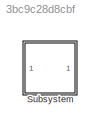
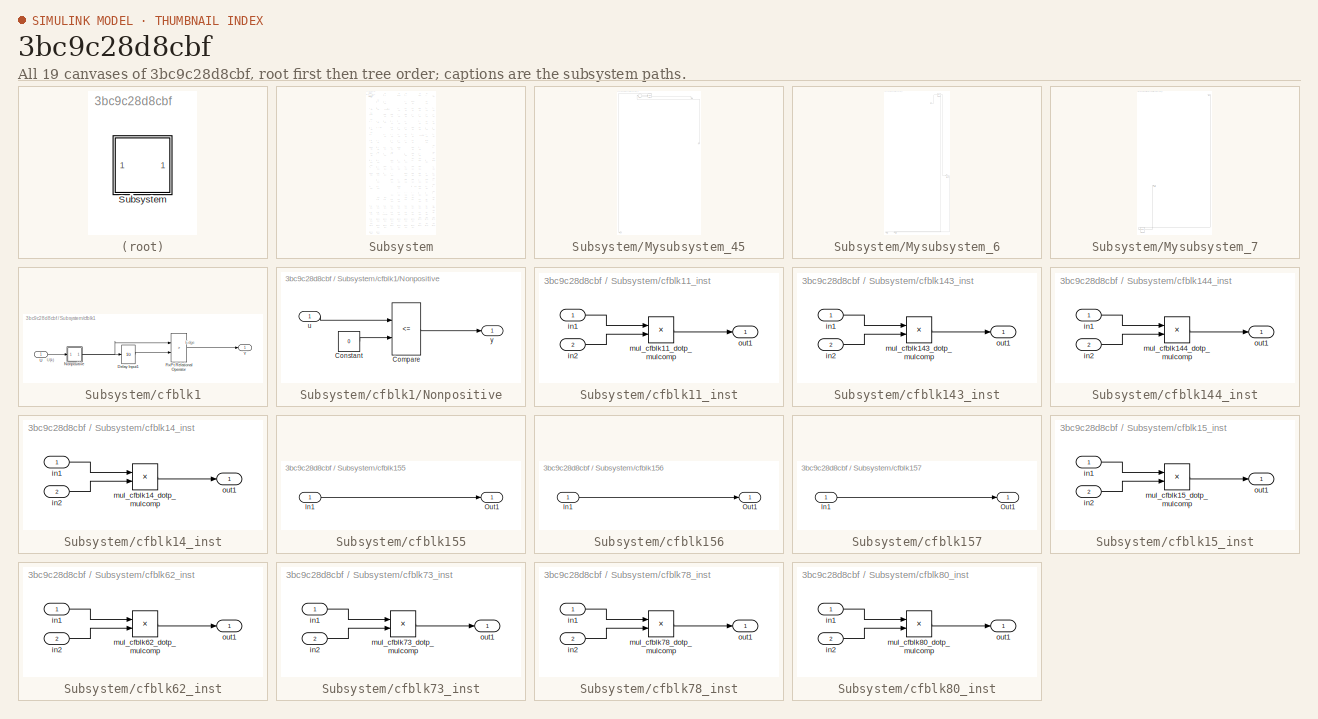
[diagram: thumbnail index - all 19 canvases of the model, root first then tree order]
MODEL slx_3bc9c28d8cbf
KIND model
CONFIG AbsTol = auto
CONFIG EnableMultiTasking = off
CONFIG FixedStep = auto
CONFIG MaxStep = auto
CONFIG MinStep = auto
CONFIG RelTol = 1e-3
CONFIG SampleTimeConstraint = Unconstrained
CONFIG SolverName = VariableStepAuto
CONFIG StartTime = 0.0
CONFIG StopTime = 10.0
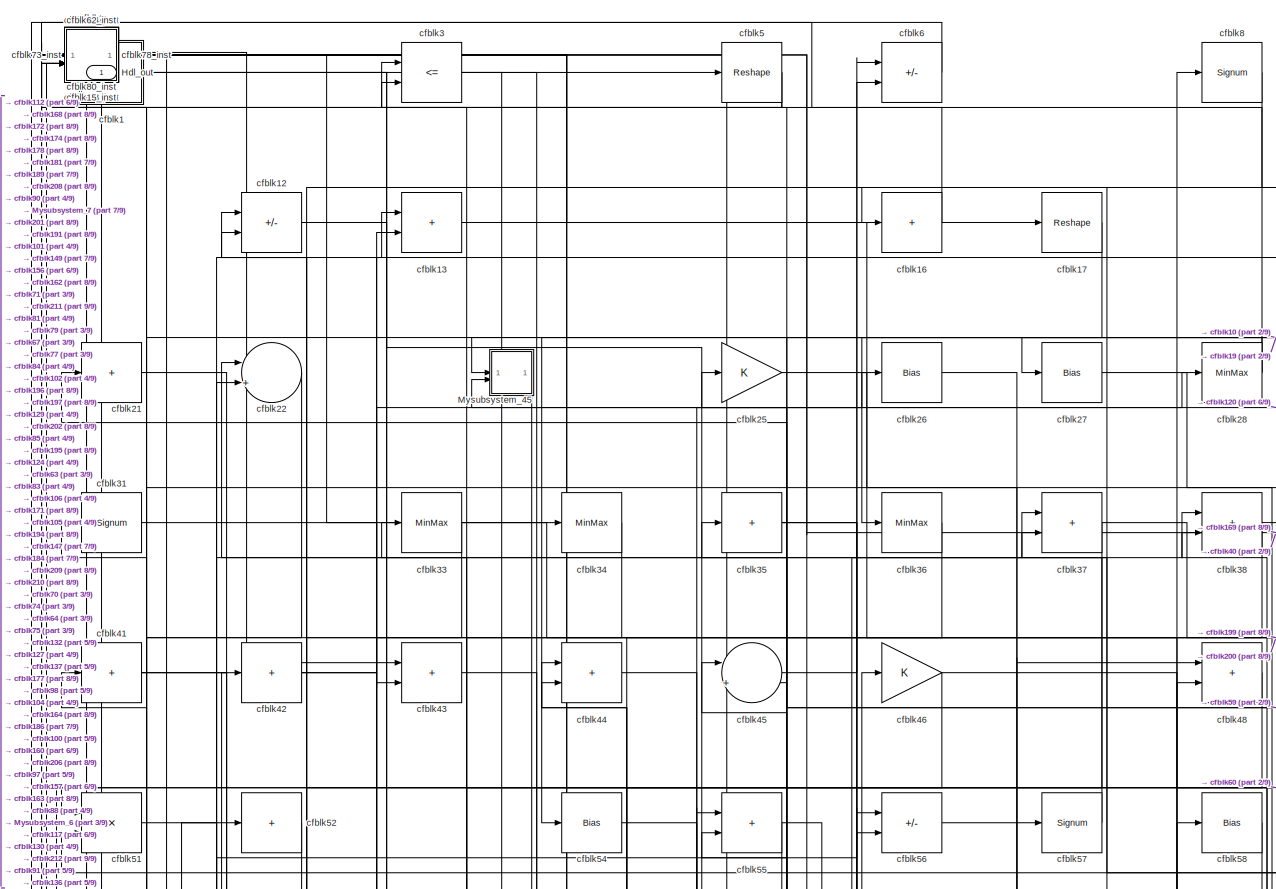
[diagram: Subsystem - part 1/9, full width, top band]
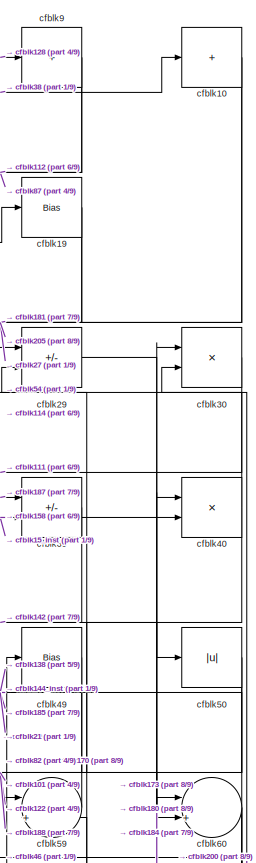
[diagram: Subsystem - part 2/9, top right region]
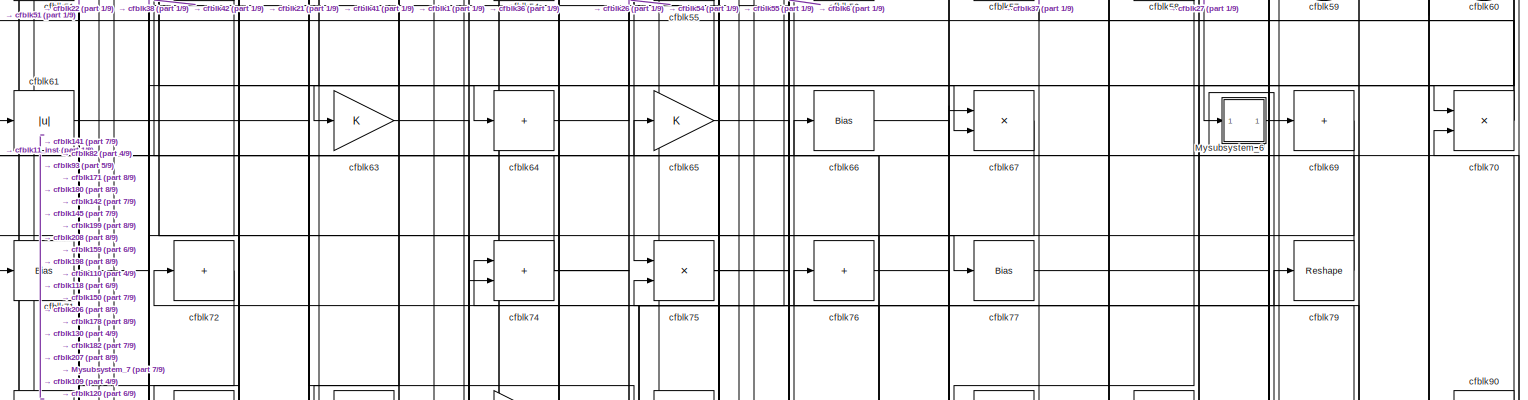
[diagram: Subsystem - part 3/9, full width, top band]
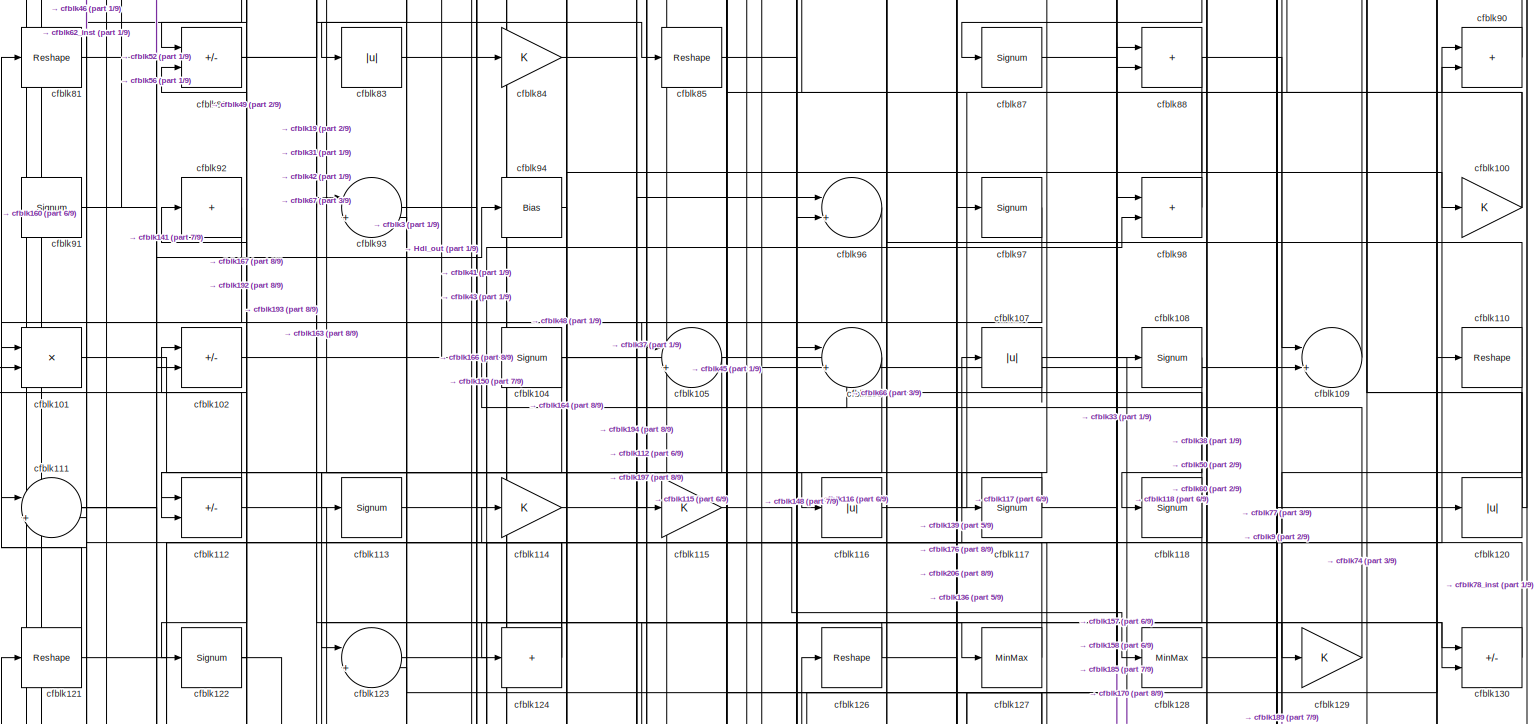
[diagram: Subsystem - part 4/9, full width, middle band]
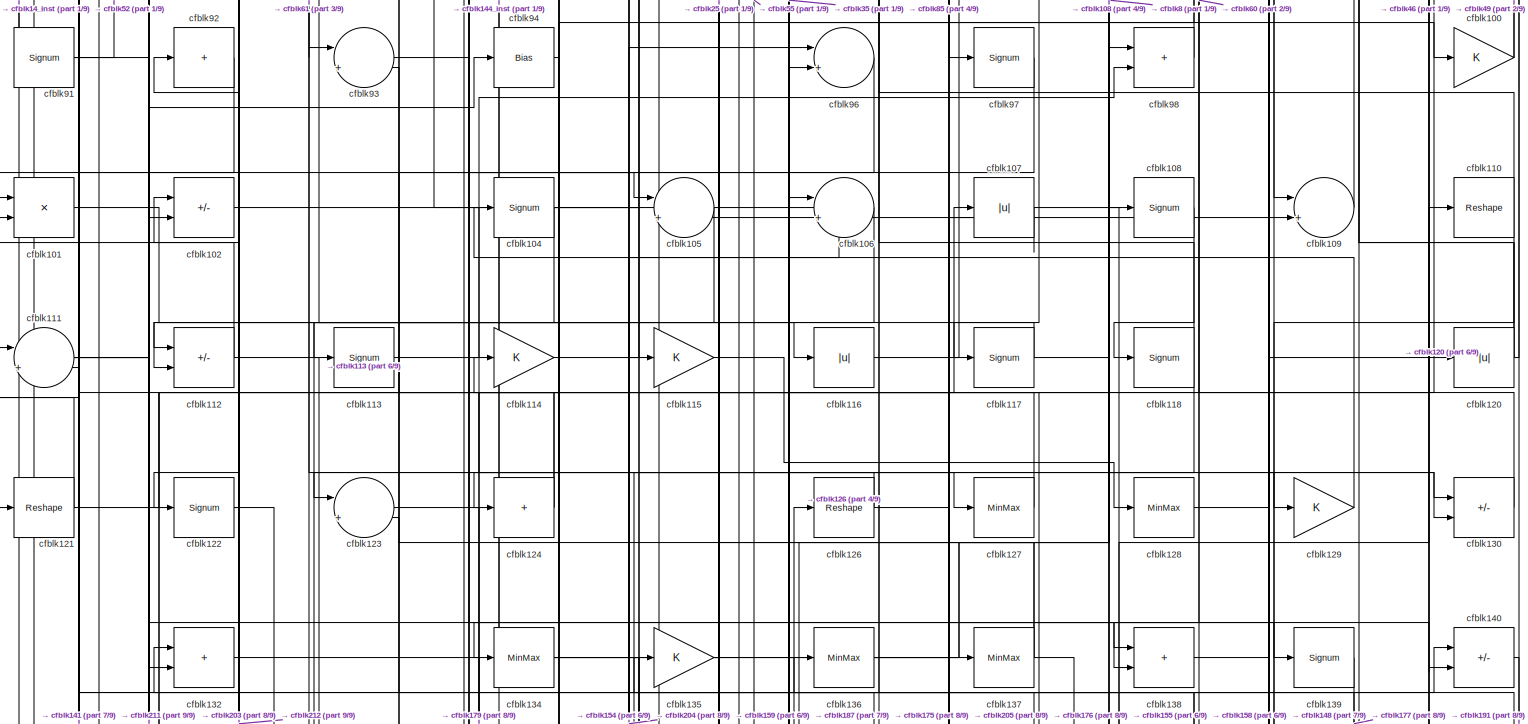
[diagram: Subsystem - part 5/9, full width, middle band]
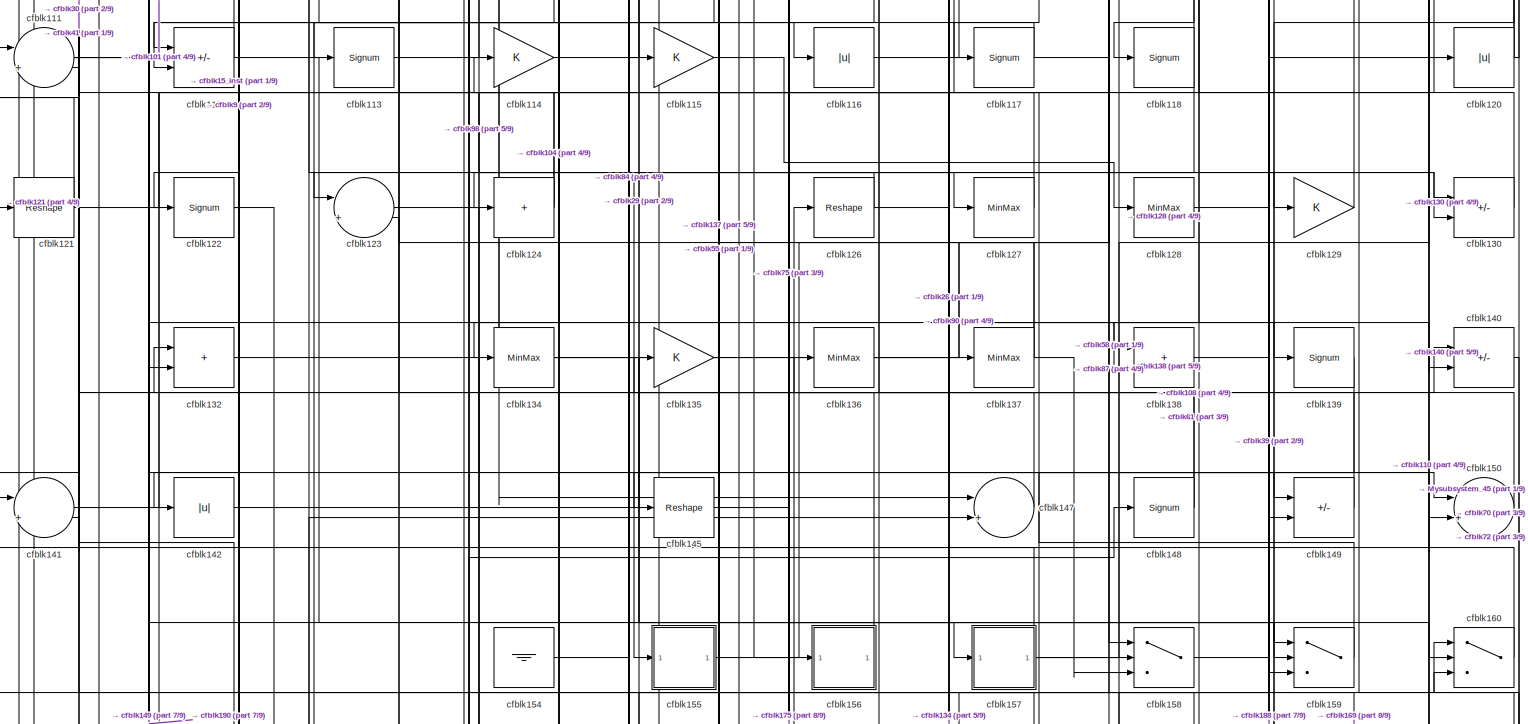
[diagram: Subsystem - part 6/9, full width, middle band]
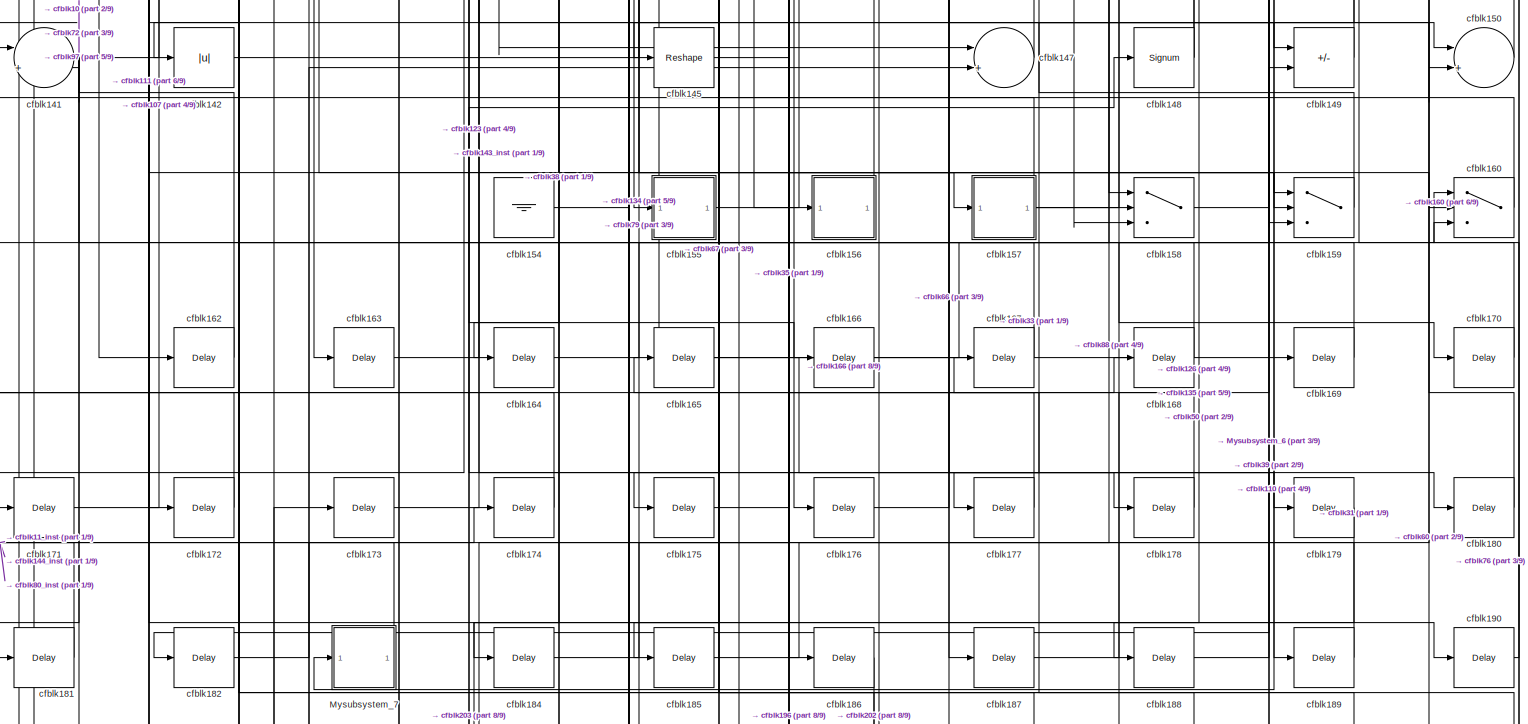
[diagram: Subsystem - part 7/9, full width, bottom band]
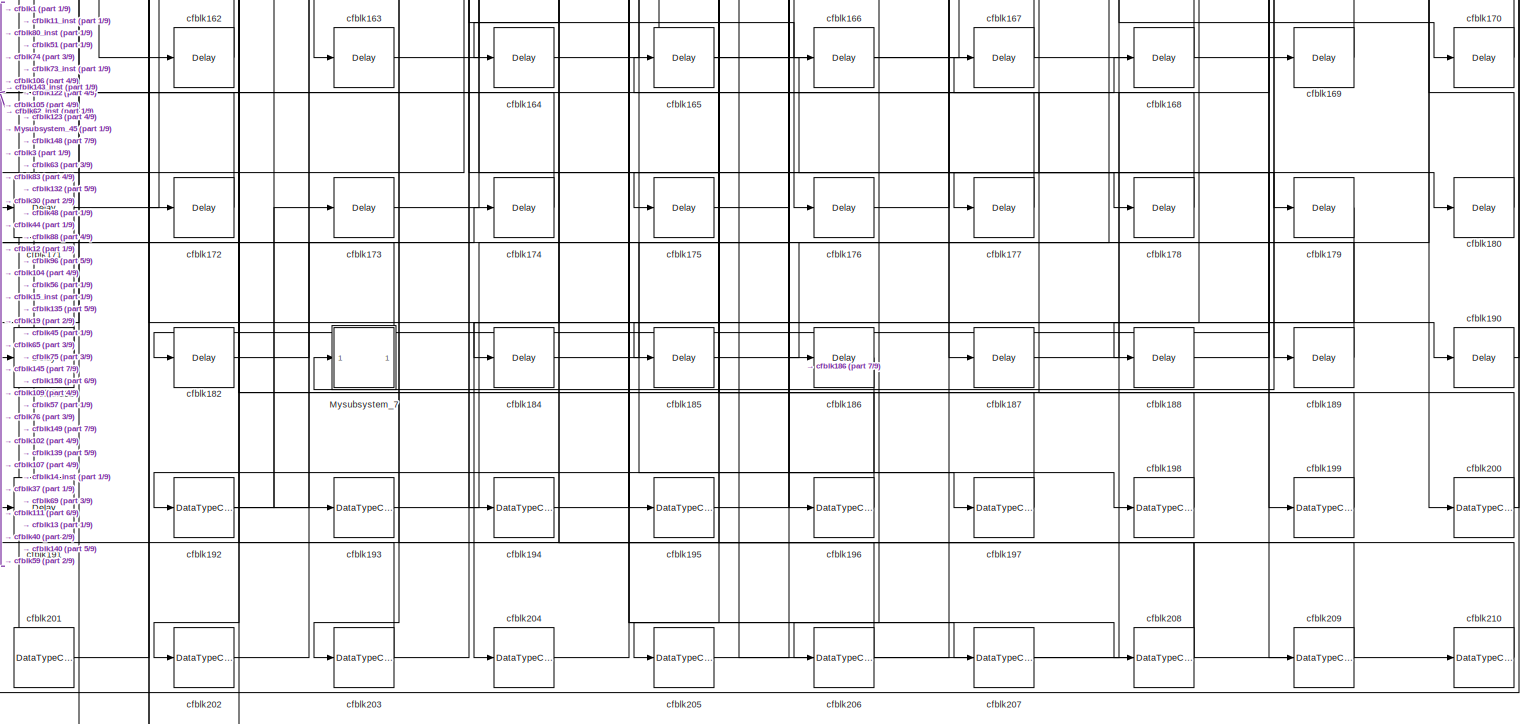
[diagram: Subsystem - part 8/9, full width, bottom band]
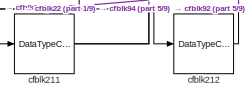
[diagram: Subsystem - part 9/9, bottom left region]
BLOCK [SubSystem] Subsystem
BLOCK [Outport] Subsystem/Hdl_out
  OutDataTypeStr = uint8
  SampleTime = 1
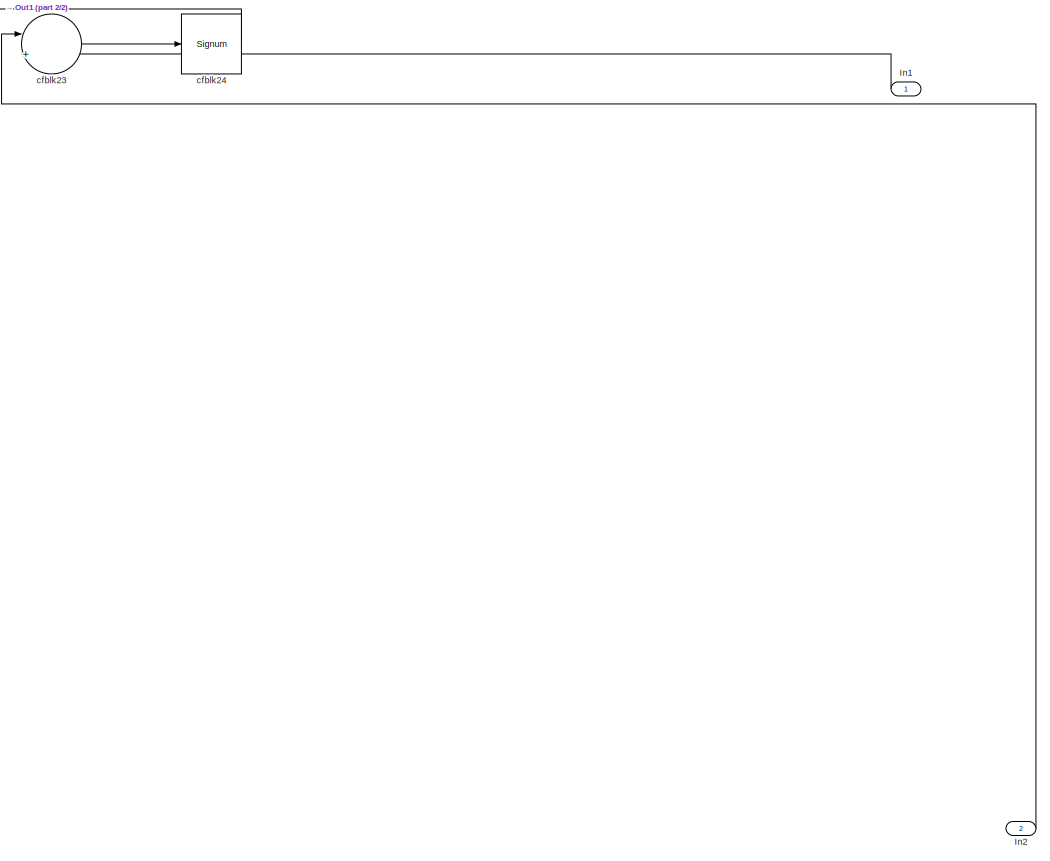
[diagram: Subsystem/Mysubsystem_45 - part 1/2, full width, top band]
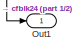
[diagram: Subsystem/Mysubsystem_45 - part 2/2, bottom left region]
BLOCK [SubSystem] Subsystem/Mysubsystem_45
BLOCK [Inport] Subsystem/Mysubsystem_45/In1
  OutDataTypeStr = uint8
  PortDimensions = 1
  SampleTime = 1
BLOCK [Inport] Subsystem/Mysubsystem_45/In2
  OutDataTypeStr = uint8
  Port = 2
  PortDimensions = 1
  SampleTime = 1
BLOCK [Outport] Subsystem/Mysubsystem_45/Out1
  SampleTime = 1
BLOCK [Sum] Subsystem/Mysubsystem_45/cfblk23
  Inputs = |++
BLOCK [Signum] Subsystem/Mysubsystem_45/cfblk24
BLOCK [SubSystem] Subsystem/Mysubsystem_6
BLOCK [Inport] Subsystem/Mysubsystem_6/In1
  OutDataTypeStr = uint8
  PortDimensions = 1
  SampleTime = 1
BLOCK [Outport] Subsystem/Mysubsystem_6/Out1
  SampleTime = 1
BLOCK [Outport] Subsystem/Mysubsystem_6/Out2
  Port = 2
  SampleTime = 1
BLOCK [Gain] Subsystem/Mysubsystem_6/cfblk119
BLOCK [Bias] Subsystem/Mysubsystem_6/cfblk18
  Bias = 0.0
  SaturateOnIntegerOverflow = off
BLOCK [SubSystem] Subsystem/Mysubsystem_7
BLOCK [Inport] Subsystem/Mysubsystem_7/In1
  OutDataTypeStr = uint8
  PortDimensions = 1
  SampleTime = 1
BLOCK [Outport] Subsystem/Mysubsystem_7/Out1
  SampleTime = 1
BLOCK [Delay] Subsystem/Mysubsystem_7/cfblk183
  InputPortMap = u0
  SampleTime = 1
BLOCK [SubSystem] Subsystem/cfblk1
BLOCK [UnitDelay] Subsystem/cfblk1/Delay Input1
  Description = Store in Global RAM
  DisableCoverage = on
  HasFrameUpgradeWarning = on
  InitialCondition = vinit
  SampleTime = -1
BLOCK [RelationalOperator] Subsystem/cfblk1/FixPt Relational Operator
  InputSameDT = off
  Operator = >
  OutDataTypeStr = fixdt(0, 8)
  ZeroCross = off
BLOCK [SubSystem] Subsystem/cfblk1/Nonpositive
BLOCK [RelationalOperator] Subsystem/cfblk1/Nonpositive/Compare
  Operator = <=
  OutDataTypeStr = boolean
  ZeroCross = off
BLOCK [Constant] Subsystem/cfblk1/Nonpositive/Constant
  DisableCoverage = on
  OutDataTypeStr = Inherit: Inherit via back propagation
  PreserveConstantTs = on
  SampleTime = -1
  Value = 0
BLOCK [Inport] Subsystem/cfblk1/Nonpositive/u
  OutDataTypeStr = uint8
  SampleTime = 1
BLOCK [Outport] Subsystem/cfblk1/Nonpositive/y
  SampleTime = 1
BLOCK [Inport] Subsystem/cfblk1/U
  OutDataTypeStr = uint8
  SampleTime = 1
BLOCK [Outport] Subsystem/cfblk1/Y
  SampleTime = 1
BLOCK [Sum] Subsystem/cfblk10
  IconShape = rectangular
  Inputs = +
  OutDataTypeStr = uint8
BLOCK [Gain] Subsystem/cfblk100
  OutDataTypeStr = uint8
BLOCK [Product] Subsystem/cfblk101
  Inputs = */
  OutDataTypeStr = uint8
  RndMeth = Zero
  SaturateOnIntegerOverflow = on
BLOCK [Sum] Subsystem/cfblk102
  IconShape = rectangular
  Inputs = +-
  OutDataTypeStr = uint8
BLOCK [Signum] Subsystem/cfblk104
BLOCK [Sum] Subsystem/cfblk105
  Inputs = |++
  OutDataTypeStr = uint8
BLOCK [Sum] Subsystem/cfblk106
  Inputs = |++
  OutDataTypeStr = uint8
BLOCK [Abs] Subsystem/cfblk107
  OutDataTypeStr = uint8
  SaturateOnIntegerOverflow = off
BLOCK [Signum] Subsystem/cfblk108
BLOCK [Sum] Subsystem/cfblk109
  Inputs = |++
  OutDataTypeStr = uint8
BLOCK [Reshape] Subsystem/cfblk110
BLOCK [Sum] Subsystem/cfblk111
  Inputs = |++
  OutDataTypeStr = uint8
BLOCK [Sum] Subsystem/cfblk112
  IconShape = rectangular
  Inputs = +-
  OutDataTypeStr = uint8
BLOCK [Signum] Subsystem/cfblk113
BLOCK [Gain] Subsystem/cfblk114
  OutDataTypeStr = uint8
BLOCK [Gain] Subsystem/cfblk115
  OutDataTypeStr = uint8
BLOCK [Abs] Subsystem/cfblk116
  OutDataTypeStr = uint8
  SaturateOnIntegerOverflow = off
BLOCK [Signum] Subsystem/cfblk117
BLOCK [Signum] Subsystem/cfblk118
BLOCK [SubSystem] Subsystem/cfblk11_inst
BLOCK [Inport] Subsystem/cfblk11_inst/in1
  OutDataTypeStr = uint8
  SampleTime = 1
BLOCK [Inport] Subsystem/cfblk11_inst/in2
  OutDataTypeStr = uint8
  Port = 2
  SampleTime = 1
BLOCK [Product] Subsystem/cfblk11_inst/mul_cfblk11_dotp_mulcomp
  Inputs = **
  OutDataTypeStr = uint8
  SampleTime = 1
BLOCK [Outport] Subsystem/cfblk11_inst/out1
  OutDataTypeStr = uint8
  SampleTime = 1
BLOCK [Sum] Subsystem/cfblk12
  IconShape = rectangular
  Inputs = +-
  OutDataTypeStr = uint8
BLOCK [Abs] Subsystem/cfblk120
  OutDataTypeStr = uint8
  SaturateOnIntegerOverflow = off
BLOCK [Reshape] Subsystem/cfblk121
BLOCK [Signum] Subsystem/cfblk122
BLOCK [Sum] Subsystem/cfblk123
  Inputs = |++
  OutDataTypeStr = uint8
BLOCK [Sum] Subsystem/cfblk124
  IconShape = rectangular
  Inputs = +
  OutDataTypeStr = uint8
BLOCK [Reshape] Subsystem/cfblk126
BLOCK [MinMax] Subsystem/cfblk127
  OutDataTypeStr = uint8
BLOCK [MinMax] Subsystem/cfblk128
  OutDataTypeStr = uint8
BLOCK [Gain] Subsystem/cfblk129
  OutDataTypeStr = uint8
BLOCK [Sum] Subsystem/cfblk13
  IconShape = rectangular
  OutDataTypeStr = uint8
BLOCK [Sum] Subsystem/cfblk130
  IconShape = rectangular
  Inputs = +-
  OutDataTypeStr = uint8
BLOCK [Sum] Subsystem/cfblk132
  IconShape = rectangular
  OutDataTypeStr = uint8
BLOCK [MinMax] Subsystem/cfblk134
  OutDataTypeStr = uint8
BLOCK [Gain] Subsystem/cfblk135
  OutDataTypeStr = uint8
BLOCK [MinMax] Subsystem/cfblk136
  OutDataTypeStr = uint8
BLOCK [MinMax] Subsystem/cfblk137
  OutDataTypeStr = uint8
BLOCK [Sum] Subsystem/cfblk138
  IconShape = rectangular
  OutDataTypeStr = uint8
BLOCK [Signum] Subsystem/cfblk139
BLOCK [Sum] Subsystem/cfblk140
  IconShape = rectangular
  Inputs = +-
  OutDataTypeStr = uint8
BLOCK [Sum] Subsystem/cfblk141
  Inputs = |++
  OutDataTypeStr = uint8
BLOCK [Abs] Subsystem/cfblk142
  OutDataTypeStr = uint8
  SaturateOnIntegerOverflow = off
BLOCK [SubSystem] Subsystem/cfblk143_inst
BLOCK [Inport] Subsystem/cfblk143_inst/in1
  OutDataTypeStr = uint8
  SampleTime = 1
BLOCK [Inport] Subsystem/cfblk143_inst/in2
  OutDataTypeStr = uint8
  Port = 2
  SampleTime = 1
BLOCK [Product] Subsystem/cfblk143_inst/mul_cfblk143_dotp_mulcomp
  Inputs = **
  OutDataTypeStr = uint8
  SampleTime = 1
BLOCK [Outport] Subsystem/cfblk143_inst/out1
  OutDataTypeStr = uint8
  SampleTime = 1
BLOCK [SubSystem] Subsystem/cfblk144_inst
BLOCK [Inport] Subsystem/cfblk144_inst/in1
  OutDataTypeStr = uint8
  SampleTime = 1
BLOCK [Inport] Subsystem/cfblk144_inst/in2
  OutDataTypeStr = uint8
  Port = 2
  SampleTime = 1
BLOCK [Product] Subsystem/cfblk144_inst/mul_cfblk144_dotp_mulcomp
  Inputs = **
  OutDataTypeStr = uint8
  SampleTime = 1
BLOCK [Outport] Subsystem/cfblk144_inst/out1
  OutDataTypeStr = uint8
  SampleTime = 1
BLOCK [Reshape] Subsystem/cfblk145
BLOCK [Sum] Subsystem/cfblk147
  Inputs = |++
  OutDataTypeStr = uint8
BLOCK [Signum] Subsystem/cfblk148
BLOCK [Sum] Subsystem/cfblk149
  IconShape = rectangular
  Inputs = +-
  OutDataTypeStr = uint8
BLOCK [SubSystem] Subsystem/cfblk14_inst
BLOCK [Inport] Subsystem/cfblk14_inst/in1
  OutDataTypeStr = uint8
  SampleTime = 1
BLOCK [Inport] Subsystem/cfblk14_inst/in2
  OutDataTypeStr = uint8
  Port = 2
  SampleTime = 1
BLOCK [Product] Subsystem/cfblk14_inst/mul_cfblk14_dotp_mulcomp
  Inputs = **
  OutDataTypeStr = uint8
  SampleTime = 1
BLOCK [Outport] Subsystem/cfblk14_inst/out1
  OutDataTypeStr = uint8
  SampleTime = 1
BLOCK [Sum] Subsystem/cfblk150
  Inputs = |++
  OutDataTypeStr = uint8
BLOCK [Ground] Subsystem/cfblk154
BLOCK [SubSystem] Subsystem/cfblk155
BLOCK [Inport] Subsystem/cfblk155/In1
  OutDataTypeStr = uint8
  PortDimensions = 1
  SampleTime = 1
BLOCK [Outport] Subsystem/cfblk155/Out1
  SampleTime = 1
BLOCK [SubSystem] Subsystem/cfblk156
BLOCK [Inport] Subsystem/cfblk156/In1
  OutDataTypeStr = uint8
  PortDimensions = 1
  SampleTime = 1
BLOCK [Outport] Subsystem/cfblk156/Out1
  SampleTime = 1
BLOCK [SubSystem] Subsystem/cfblk157
BLOCK [Inport] Subsystem/cfblk157/In1
  OutDataTypeStr = uint8
  PortDimensions = 1
  SampleTime = 1
BLOCK [Outport] Subsystem/cfblk157/Out1
  SampleTime = 1
BLOCK [Switch] Subsystem/cfblk158
  InputSameDT = off
  OutDataTypeStr = uint8
  SaturateOnIntegerOverflow = off
BLOCK [Switch] Subsystem/cfblk159
  InputSameDT = off
  OutDataTypeStr = uint8
  SaturateOnIntegerOverflow = off
BLOCK [SubSystem] Subsystem/cfblk15_inst
BLOCK [Inport] Subsystem/cfblk15_inst/in1
  OutDataTypeStr = uint8
  SampleTime = 1
BLOCK [Inport] Subsystem/cfblk15_inst/in2
  OutDataTypeStr = uint8
  Port = 2
  SampleTime = 1
BLOCK [Product] Subsystem/cfblk15_inst/mul_cfblk15_dotp_mulcomp
  Inputs = **
  OutDataTypeStr = uint8
  SampleTime = 1
BLOCK [Outport] Subsystem/cfblk15_inst/out1
  OutDataTypeStr = uint8
  SampleTime = 1
BLOCK [Sum] Subsystem/cfblk16
  IconShape = rectangular
  Inputs = +
  OutDataTypeStr = uint8
BLOCK [Switch] Subsystem/cfblk160
  InputSameDT = off
  OutDataTypeStr = uint8
  SaturateOnIntegerOverflow = off
BLOCK [Delay] Subsystem/cfblk162
  InputPortMap = u0
  SampleTime = 1
BLOCK [Delay] Subsystem/cfblk163
  InputPortMap = u0
  SampleTime = 1
BLOCK [Delay] Subsystem/cfblk164
  InputPortMap = u0
  SampleTime = 1
BLOCK [Delay] Subsystem/cfblk165
  InputPortMap = u0
  SampleTime = 1
BLOCK [Delay] Subsystem/cfblk166
  InputPortMap = u0
  SampleTime = 1
BLOCK [Delay] Subsystem/cfblk167
  InputPortMap = u0
  SampleTime = 1
BLOCK [Delay] Subsystem/cfblk168
  InputPortMap = u0
  SampleTime = 1
BLOCK [Delay] Subsystem/cfblk169
  InputPortMap = u0
  SampleTime = 1
BLOCK [Reshape] Subsystem/cfblk17
BLOCK [Delay] Subsystem/cfblk170
  InputPortMap = u0
  SampleTime = 1
BLOCK [Delay] Subsystem/cfblk171
  InputPortMap = u0
  SampleTime = 1
BLOCK [Delay] Subsystem/cfblk172
  InputPortMap = u0
  SampleTime = 1
BLOCK [Delay] Subsystem/cfblk173
  InputPortMap = u0
  SampleTime = 1
BLOCK [Delay] Subsystem/cfblk174
  InputPortMap = u0
  SampleTime = 1
BLOCK [Delay] Subsystem/cfblk175
  InputPortMap = u0
  SampleTime = 1
BLOCK [Delay] Subsystem/cfblk176
  InputPortMap = u0
  SampleTime = 1
BLOCK [Delay] Subsystem/cfblk177
  InputPortMap = u0
  SampleTime = 1
BLOCK [Delay] Subsystem/cfblk178
  InputPortMap = u0
  SampleTime = 1
BLOCK [Delay] Subsystem/cfblk179
  InputPortMap = u0
  SampleTime = 1
BLOCK [Delay] Subsystem/cfblk180
  InputPortMap = u0
  SampleTime = 1
BLOCK [Delay] Subsystem/cfblk181
  InputPortMap = u0
  SampleTime = 1
BLOCK [Delay] Subsystem/cfblk182
  InputPortMap = u0
  SampleTime = 1
BLOCK [Delay] Subsystem/cfblk184
  InputPortMap = u0
  SampleTime = 1
BLOCK [Delay] Subsystem/cfblk185
  InputPortMap = u0
  SampleTime = 1
BLOCK [Delay] Subsystem/cfblk186
  InputPortMap = u0
  SampleTime = 1
BLOCK [Delay] Subsystem/cfblk187
  InputPortMap = u0
  SampleTime = 1
BLOCK [Delay] Subsystem/cfblk188
  InputPortMap = u0
  SampleTime = 1
BLOCK [Delay] Subsystem/cfblk189
  InputPortMap = u0
  SampleTime = 1
BLOCK [Bias] Subsystem/cfblk19
  Bias = 0.0
  SaturateOnIntegerOverflow = off
BLOCK [Delay] Subsystem/cfblk190
  InputPortMap = u0
  SampleTime = 1
BLOCK [Delay] Subsystem/cfblk191
  InputPortMap = u0
  SampleTime = 1
BLOCK [DataTypeConversion] Subsystem/cfblk192
  OutDataTypeStr = uint8
  RndMeth = Floor
  SaturateOnIntegerOverflow = off
BLOCK [DataTypeConversion] Subsystem/cfblk193
  OutDataTypeStr = uint8
  RndMeth = Floor
  SaturateOnIntegerOverflow = off
BLOCK [DataTypeConversion] Subsystem/cfblk194
  OutDataTypeStr = uint8
  RndMeth = Floor
  SaturateOnIntegerOverflow = off
BLOCK [DataTypeConversion] Subsystem/cfblk195
  OutDataTypeStr = uint8
  RndMeth = Floor
  SaturateOnIntegerOverflow = off
BLOCK [DataTypeConversion] Subsystem/cfblk196
  OutDataTypeStr = uint8
  RndMeth = Floor
  SaturateOnIntegerOverflow = off
BLOCK [DataTypeConversion] Subsystem/cfblk197
  OutDataTypeStr = uint8
  RndMeth = Floor
  SaturateOnIntegerOverflow = off
BLOCK [DataTypeConversion] Subsystem/cfblk198
  OutDataTypeStr = uint8
  RndMeth = Floor
  SaturateOnIntegerOverflow = off
BLOCK [DataTypeConversion] Subsystem/cfblk199
  OutDataTypeStr = uint8
  RndMeth = Floor
  SaturateOnIntegerOverflow = off
BLOCK [Constant] Subsystem/cfblk2
  OutDataTypeStr = uint8
  SampleTime = 1
  Value = 0
BLOCK [DataTypeConversion] Subsystem/cfblk200
  OutDataTypeStr = uint8
  RndMeth = Floor
  SaturateOnIntegerOverflow = off
BLOCK [DataTypeConversion] Subsystem/cfblk201
  OutDataTypeStr = uint8
  RndMeth = Floor
  SaturateOnIntegerOverflow = off
BLOCK [DataTypeConversion] Subsystem/cfblk202
  OutDataTypeStr = uint8
  RndMeth = Floor
  SaturateOnIntegerOverflow = off
BLOCK [DataTypeConversion] Subsystem/cfblk203
  OutDataTypeStr = uint8
  RndMeth = Floor
  SaturateOnIntegerOverflow = off
BLOCK [DataTypeConversion] Subsystem/cfblk204
  OutDataTypeStr = uint8
  RndMeth = Floor
  SaturateOnIntegerOverflow = off
BLOCK [DataTypeConversion] Subsystem/cfblk205
  OutDataTypeStr = uint8
  RndMeth = Floor
  SaturateOnIntegerOverflow = off
BLOCK [DataTypeConversion] Subsystem/cfblk206
  OutDataTypeStr = uint8
  RndMeth = Floor
  SaturateOnIntegerOverflow = off
BLOCK [DataTypeConversion] Subsystem/cfblk207
  OutDataTypeStr = uint8
  RndMeth = Floor
  SaturateOnIntegerOverflow = off
BLOCK [DataTypeConversion] Subsystem/cfblk208
  OutDataTypeStr = uint8
  RndMeth = Floor
  SaturateOnIntegerOverflow = off
BLOCK [DataTypeConversion] Subsystem/cfblk209
  OutDataTypeStr = uint8
  RndMeth = Floor
  SaturateOnIntegerOverflow = off
BLOCK [Sum] Subsystem/cfblk21
  IconShape = rectangular
  Inputs = +
  OutDataTypeStr = uint8
BLOCK [DataTypeConversion] Subsystem/cfblk210
  OutDataTypeStr = uint8
  RndMeth = Floor
  SaturateOnIntegerOverflow = off
BLOCK [DataTypeConversion] Subsystem/cfblk211
  OutDataTypeStr = uint8
  RndMeth = Floor
  SaturateOnIntegerOverflow = off
BLOCK [DataTypeConversion] Subsystem/cfblk212
  OutDataTypeStr = uint8
  RndMeth = Floor
  SaturateOnIntegerOverflow = off
BLOCK [Sum] Subsystem/cfblk22
  Inputs = |++
  OutDataTypeStr = uint8
BLOCK [Gain] Subsystem/cfblk25
  OutDataTypeStr = uint8
BLOCK [Bias] Subsystem/cfblk26
  Bias = 0.0
  SaturateOnIntegerOverflow = off
BLOCK [Bias] Subsystem/cfblk27
  Bias = 0.0
  SaturateOnIntegerOverflow = off
BLOCK [MinMax] Subsystem/cfblk28
  OutDataTypeStr = uint8
BLOCK [Sum] Subsystem/cfblk29
  IconShape = rectangular
  Inputs = +-
  OutDataTypeStr = uint8
BLOCK [RelationalOperator] Subsystem/cfblk3
  InputSameDT = off
  Operator = <=
  OutDataTypeStr = boolean
BLOCK [Product] Subsystem/cfblk30
  Inputs = */
  OutDataTypeStr = uint8
  RndMeth = Zero
  SaturateOnIntegerOverflow = on
BLOCK [Signum] Subsystem/cfblk31
BLOCK [MinMax] Subsystem/cfblk33
  OutDataTypeStr = uint8
BLOCK [MinMax] Subsystem/cfblk34
  OutDataTypeStr = uint8
BLOCK [Sum] Subsystem/cfblk35
  IconShape = rectangular
  Inputs = +
  OutDataTypeStr = uint8
BLOCK [MinMax] Subsystem/cfblk36
  OutDataTypeStr = uint8
BLOCK [Sum] Subsystem/cfblk37
  IconShape = rectangular
  OutDataTypeStr = uint8
BLOCK [Sum] Subsystem/cfblk38
  IconShape = rectangular
  OutDataTypeStr = uint8
BLOCK [Sum] Subsystem/cfblk39
  IconShape = rectangular
  Inputs = +-
  OutDataTypeStr = uint8
BLOCK [Product] Subsystem/cfblk40
  Inputs = */
  OutDataTypeStr = uint8
  RndMeth = Zero
  SaturateOnIntegerOverflow = on
BLOCK [Sum] Subsystem/cfblk41
  IconShape = rectangular
  Inputs = +
  OutDataTypeStr = uint8
BLOCK [Sum] Subsystem/cfblk42
  IconShape = rectangular
  Inputs = +
  OutDataTypeStr = uint8
BLOCK [Sum] Subsystem/cfblk43
  IconShape = rectangular
  OutDataTypeStr = uint8
BLOCK [Sum] Subsystem/cfblk44
  IconShape = rectangular
  OutDataTypeStr = uint8
BLOCK [Sum] Subsystem/cfblk45
  Inputs = |++
  OutDataTypeStr = uint8
BLOCK [Gain] Subsystem/cfblk46
  OutDataTypeStr = uint8
BLOCK [Sum] Subsystem/cfblk48
  IconShape = rectangular
  OutDataTypeStr = uint8
BLOCK [Bias] Subsystem/cfblk49
  Bias = 0.0
  SaturateOnIntegerOverflow = off
BLOCK [Reshape] Subsystem/cfblk5
BLOCK [Abs] Subsystem/cfblk50
  OutDataTypeStr = uint8
  SaturateOnIntegerOverflow = off
BLOCK [Product] Subsystem/cfblk51
  Inputs = */
  OutDataTypeStr = uint8
  RndMeth = Zero
  SaturateOnIntegerOverflow = on
BLOCK [Sum] Subsystem/cfblk52
  IconShape = rectangular
  Inputs = +
  OutDataTypeStr = uint8
BLOCK [Bias] Subsystem/cfblk54
  Bias = 0.0
  SaturateOnIntegerOverflow = off
BLOCK [Sum] Subsystem/cfblk55
  IconShape = rectangular
  OutDataTypeStr = uint8
BLOCK [Sum] Subsystem/cfblk56
  IconShape = rectangular
  Inputs = +-
  OutDataTypeStr = uint8
BLOCK [Signum] Subsystem/cfblk57
BLOCK [Bias] Subsystem/cfblk58
  Bias = 0.0
  SaturateOnIntegerOverflow = off
BLOCK [Sum] Subsystem/cfblk59
  Inputs = |++
  OutDataTypeStr = uint8
BLOCK [Sum] Subsystem/cfblk6
  IconShape = rectangular
  Inputs = +-
  OutDataTypeStr = uint8
BLOCK [Sum] Subsystem/cfblk60
  Inputs = |++
  OutDataTypeStr = uint8
BLOCK [Abs] Subsystem/cfblk61
  OutDataTypeStr = uint8
  SaturateOnIntegerOverflow = off
BLOCK [SubSystem] Subsystem/cfblk62_inst
BLOCK [Inport] Subsystem/cfblk62_inst/in1
  OutDataTypeStr = uint8
  SampleTime = 1
BLOCK [Inport] Subsystem/cfblk62_inst/in2
  OutDataTypeStr = uint8
  Port = 2
  SampleTime = 1
BLOCK [Product] Subsystem/cfblk62_inst/mul_cfblk62_dotp_mulcomp
  Inputs = **
  OutDataTypeStr = uint8
  SampleTime = 1
BLOCK [Outport] Subsystem/cfblk62_inst/out1
  OutDataTypeStr = uint8
  SampleTime = 1
BLOCK [Gain] Subsystem/cfblk63
  OutDataTypeStr = uint8
BLOCK [Sum] Subsystem/cfblk64
  IconShape = rectangular
  Inputs = +
  OutDataTypeStr = uint8
BLOCK [Gain] Subsystem/cfblk65
  OutDataTypeStr = uint8
BLOCK [Bias] Subsystem/cfblk66
  Bias = 0.0
  SaturateOnIntegerOverflow = off
BLOCK [Product] Subsystem/cfblk67
  Inputs = */
  OutDataTypeStr = uint8
  RndMeth = Zero
  SaturateOnIntegerOverflow = on
BLOCK [Sum] Subsystem/cfblk69
  IconShape = rectangular
  Inputs = +
  OutDataTypeStr = uint8
BLOCK [Product] Subsystem/cfblk70
  Inputs = */
  OutDataTypeStr = uint8
  RndMeth = Zero
  SaturateOnIntegerOverflow = on
BLOCK [Bias] Subsystem/cfblk71
  Bias = 0.0
  SaturateOnIntegerOverflow = off
BLOCK [Sum] Subsystem/cfblk72
  IconShape = rectangular
  Inputs = +
  OutDataTypeStr = uint8
BLOCK [SubSystem] Subsystem/cfblk73_inst
BLOCK [Inport] Subsystem/cfblk73_inst/in1
  OutDataTypeStr = uint8
  SampleTime = 1
BLOCK [Inport] Subsystem/cfblk73_inst/in2
  OutDataTypeStr = uint8
  Port = 2
  SampleTime = 1
BLOCK [Product] Subsystem/cfblk73_inst/mul_cfblk73_dotp_mulcomp
  Inputs = **
  OutDataTypeStr = uint8
  SampleTime = 1
BLOCK [Outport] Subsystem/cfblk73_inst/out1
  OutDataTypeStr = uint8
  SampleTime = 1
BLOCK [Sum] Subsystem/cfblk74
  IconShape = rectangular
  OutDataTypeStr = uint8
BLOCK [Product] Subsystem/cfblk75
  Inputs = */
  OutDataTypeStr = uint8
  RndMeth = Zero
  SaturateOnIntegerOverflow = on
BLOCK [Sum] Subsystem/cfblk76
  IconShape = rectangular
  Inputs = +
  OutDataTypeStr = uint8
BLOCK [Bias] Subsystem/cfblk77
  Bias = 0.0
  SaturateOnIntegerOverflow = off
BLOCK [SubSystem] Subsystem/cfblk78_inst
BLOCK [Inport] Subsystem/cfblk78_inst/in1
  OutDataTypeStr = uint8
  SampleTime = 1
BLOCK [Inport] Subsystem/cfblk78_inst/in2
  OutDataTypeStr = uint8
  Port = 2
  SampleTime = 1
BLOCK [Product] Subsystem/cfblk78_inst/mul_cfblk78_dotp_mulcomp
  Inputs = **
  OutDataTypeStr = uint8
  SampleTime = 1
BLOCK [Outport] Subsystem/cfblk78_inst/out1
  OutDataTypeStr = uint8
  SampleTime = 1
BLOCK [Reshape] Subsystem/cfblk79
BLOCK [Signum] Subsystem/cfblk8
BLOCK [SubSystem] Subsystem/cfblk80_inst
BLOCK [Inport] Subsystem/cfblk80_inst/in1
  OutDataTypeStr = uint8
  SampleTime = 1
BLOCK [Inport] Subsystem/cfblk80_inst/in2
  OutDataTypeStr = uint8
  Port = 2
  SampleTime = 1
BLOCK [Product] Subsystem/cfblk80_inst/mul_cfblk80_dotp_mulcomp
  Inputs = **
  OutDataTypeStr = uint8
  SampleTime = 1
BLOCK [Outport] Subsystem/cfblk80_inst/out1
  OutDataTypeStr = uint8
  SampleTime = 1
BLOCK [Reshape] Subsystem/cfblk81
BLOCK [Sum] Subsystem/cfblk82
  IconShape = rectangular
  Inputs = +-
  OutDataTypeStr = uint8
BLOCK [Abs] Subsystem/cfblk83
  OutDataTypeStr = uint8
  SaturateOnIntegerOverflow = off
BLOCK [Gain] Subsystem/cfblk84
  OutDataTypeStr = uint8
BLOCK [Reshape] Subsystem/cfblk85
BLOCK [Signum] Subsystem/cfblk87
BLOCK [Sum] Subsystem/cfblk88
  IconShape = rectangular
  OutDataTypeStr = uint8
BLOCK [Sum] Subsystem/cfblk9
  IconShape = rectangular
  Inputs = +
  OutDataTypeStr = uint8
BLOCK [Sum] Subsystem/cfblk90
  IconShape = rectangular
  OutDataTypeStr = uint8
BLOCK [Signum] Subsystem/cfblk91
BLOCK [Sum] Subsystem/cfblk92
  IconShape = rectangular
  Inputs = +
  OutDataTypeStr = uint8
BLOCK [Sum] Subsystem/cfblk93
  Inputs = |++
  OutDataTypeStr = uint8
BLOCK [Bias] Subsystem/cfblk94
  Bias = 0.0
  SaturateOnIntegerOverflow = off
BLOCK [Sum] Subsystem/cfblk96
  Inputs = |++
  OutDataTypeStr = uint8
BLOCK [Signum] Subsystem/cfblk97
BLOCK [Sum] Subsystem/cfblk98
  IconShape = rectangular
  OutDataTypeStr = uint8
ANNOTATION Subsystem/cfblk1: Edge
ANNOTATION Subsystem/cfblk1: U(k)
LINE Subsystem/Mysubsystem_45/In1:1 -> Subsystem/Mysubsystem_45/cfblk23:2
LINE Subsystem/Mysubsystem_45/In2:1 -> Subsystem/Mysubsystem_45/cfblk23:1
LINE Subsystem/Mysubsystem_45/cfblk23:1 -> Subsystem/Mysubsystem_45/cfblk24:1
LINE Subsystem/Mysubsystem_45/cfblk24:1 -> Subsystem/Mysubsystem_45/Out1:1
LINE Subsystem/Mysubsystem_45:1 -> Subsystem/cfblk171:1
LINE Subsystem/Mysubsystem_6/In1:1 -> Subsystem/Mysubsystem_6/cfblk18:1
LINE Subsystem/Mysubsystem_6/cfblk119:1 -> Subsystem/Mysubsystem_6/Out1:1
NET Subsystem/Mysubsystem_6/cfblk18:1 -> Subsystem/Mysubsystem_6/Out2:1, Subsystem/Mysubsystem_6/cfblk119:1
LINE Subsystem/Mysubsystem_6:1 -> Subsystem/cfblk182:1
LINE Subsystem/Mysubsystem_6:2 -> Subsystem/Mysubsystem_7:1
LINE Subsystem/Mysubsystem_7/In1:1 -> Subsystem/Mysubsystem_7/cfblk183:1
LINE Subsystem/Mysubsystem_7/cfblk183:1 -> Subsystem/Mysubsystem_7/Out1:1
LINE Subsystem/Mysubsystem_7:1 -> Subsystem/cfblk144_inst:2
NET Subsystem/cfblk100:1 -> Subsystem/cfblk46:1, Subsystem/cfblk49:1
LINE Subsystem/cfblk101:1 -> Subsystem/cfblk116:1
LINE Subsystem/cfblk102:1 -> Subsystem/cfblk127:1
NET Subsystem/cfblk104:1 -> Subsystem/cfblk112:2, Subsystem/cfblk197:1, Subsystem/cfblk37:1
LINE Subsystem/cfblk105:1 -> Subsystem/cfblk163:1
NET Subsystem/cfblk106:1 -> Subsystem/Hdl_out:1, Subsystem/cfblk192:1
NET Subsystem/cfblk107:1 -> Subsystem/cfblk105:2, Subsystem/cfblk170:1
LINE Subsystem/cfblk108:1 -> Subsystem/cfblk118:1
LINE Subsystem/cfblk109:1 -> Subsystem/cfblk74:1
NET Subsystem/cfblk10:1 -> Subsystem/cfblk181:1, Subsystem/cfblk27:1
NET Subsystem/cfblk110:1 -> Subsystem/cfblk189:1, Subsystem/cfblk66:1
NET Subsystem/cfblk111:1 -> Subsystem/cfblk149:1, Subsystem/cfblk157:1, Subsystem/cfblk190:1
NET Subsystem/cfblk112:1 -> Subsystem/cfblk159:2, Subsystem/cfblk15_inst:1
LINE Subsystem/cfblk113:1 -> Subsystem/cfblk98:2
LINE Subsystem/cfblk114:1 -> Subsystem/cfblk29:1
LINE Subsystem/cfblk115:1 -> Subsystem/cfblk128:1
LINE Subsystem/cfblk116:1 -> Subsystem/cfblk90:1
NET Subsystem/cfblk117:1 -> Subsystem/cfblk113:1, Subsystem/cfblk130:2
NET Subsystem/cfblk118:1 -> Subsystem/cfblk155:1, Subsystem/cfblk61:1
LINE Subsystem/cfblk11_inst/in1:1 -> Subsystem/cfblk11_inst/mul_cfblk11_dotp_mulcomp:1
LINE Subsystem/cfblk11_inst/in2:1 -> Subsystem/cfblk11_inst/mul_cfblk11_dotp_mulcomp:2
LINE Subsystem/cfblk11_inst/mul_cfblk11_dotp_mulcomp:1 -> Subsystem/cfblk11_inst/out1:1
LINE Subsystem/cfblk11_inst:1 -> Subsystem/cfblk201:1
NET Subsystem/cfblk120:1 -> Subsystem/Mysubsystem_45:2, Subsystem/cfblk70:2, Subsystem/cfblk72:1
NET Subsystem/cfblk121:1 -> Subsystem/cfblk81:1, Subsystem/cfblk90:2
NET Subsystem/cfblk122:1 -> Subsystem/cfblk193:1, Subsystem/cfblk82:2
LINE Subsystem/cfblk123:1 -> Subsystem/cfblk150:1
NET Subsystem/cfblk124:1 -> Subsystem/cfblk3:1, Subsystem/cfblk62_inst:1
NET Subsystem/cfblk126:1 -> Subsystem/cfblk123:1, Subsystem/cfblk139:1
LINE Subsystem/cfblk127:1 -> Subsystem/cfblk45:1
LINE Subsystem/cfblk128:1 -> Subsystem/cfblk9:1
LINE Subsystem/cfblk129:1 -> Subsystem/cfblk104:1
LINE Subsystem/cfblk12:1 -> Subsystem/cfblk195:1
LINE Subsystem/cfblk130:1 -> Subsystem/cfblk38:1
LINE Subsystem/cfblk132:1 -> Subsystem/cfblk179:1
NET Subsystem/cfblk134:1 -> Subsystem/cfblk159:3, Subsystem/cfblk187:1
NET Subsystem/cfblk135:1 -> Subsystem/cfblk175:1, Subsystem/cfblk176:1
NET Subsystem/cfblk136:1 -> Subsystem/cfblk108:1, Subsystem/cfblk8:1
NET Subsystem/cfblk137:1 -> Subsystem/cfblk158:3, Subsystem/cfblk25:1, Subsystem/cfblk93:2
LINE Subsystem/cfblk138:1 -> Subsystem/cfblk120:1
LINE Subsystem/cfblk139:1 -> Subsystem/cfblk177:1
LINE Subsystem/cfblk13:1 -> Subsystem/cfblk200:1
LINE Subsystem/cfblk140:1 -> Subsystem/cfblk191:1
LINE Subsystem/cfblk141:1 -> Subsystem/cfblk107:1
LINE Subsystem/cfblk142:1 -> Subsystem/cfblk79:1
LINE Subsystem/cfblk143_inst/in1:1 -> Subsystem/cfblk143_inst/mul_cfblk143_dotp_mulcomp:1
LINE Subsystem/cfblk143_inst/in2:1 -> Subsystem/cfblk143_inst/mul_cfblk143_dotp_mulcomp:2
LINE Subsystem/cfblk143_inst/mul_cfblk143_dotp_mulcomp:1 -> Subsystem/cfblk143_inst/out1:1
LINE Subsystem/cfblk143_inst:1 -> Subsystem/cfblk147:1
LINE Subsystem/cfblk144_inst/in1:1 -> Subsystem/cfblk144_inst/mul_cfblk144_dotp_mulcomp:1
LINE Subsystem/cfblk144_inst/in2:1 -> Subsystem/cfblk144_inst/mul_cfblk144_dotp_mulcomp:2
LINE Subsystem/cfblk144_inst/mul_cfblk144_dotp_mulcomp:1 -> Subsystem/cfblk144_inst/out1:1
LINE Subsystem/cfblk144_inst:1 -> Subsystem/cfblk137:1
LINE Subsystem/cfblk145:1 -> Subsystem/cfblk196:1
LINE Subsystem/cfblk147:1 -> Subsystem/cfblk33:1
NET Subsystem/cfblk148:1 -> Subsystem/cfblk126:1, Subsystem/cfblk135:1
LINE Subsystem/cfblk149:1 -> Subsystem/cfblk31:1
LINE Subsystem/cfblk14_inst/in1:1 -> Subsystem/cfblk14_inst/mul_cfblk14_dotp_mulcomp:1
LINE Subsystem/cfblk14_inst/in2:1 -> Subsystem/cfblk14_inst/mul_cfblk14_dotp_mulcomp:2
LINE Subsystem/cfblk14_inst/mul_cfblk14_dotp_mulcomp:1 -> Subsystem/cfblk14_inst/out1:1
LINE Subsystem/cfblk14_inst:1 -> Subsystem/cfblk91:1
LINE Subsystem/cfblk150:1 -> Subsystem/cfblk76:1
LINE Subsystem/cfblk154:1 -> Subsystem/cfblk140:1
LINE Subsystem/cfblk155/In1:1 -> Subsystem/cfblk155/Out1:1
LINE Subsystem/cfblk155:1 -> Subsystem/cfblk98:1
LINE Subsystem/cfblk156/In1:1 -> Subsystem/cfblk156/Out1:1
LINE Subsystem/cfblk156:1 -> Subsystem/cfblk41:1
LINE Subsystem/cfblk157/In1:1 -> Subsystem/cfblk157/Out1:1
NET Subsystem/cfblk157:1 -> Subsystem/cfblk110:1, Subsystem/cfblk55:2, Subsystem/cfblk58:1
LINE Subsystem/cfblk158:1 -> Subsystem/cfblk39:2
LINE Subsystem/cfblk159:1 -> Subsystem/cfblk114:1
LINE Subsystem/cfblk15_inst/in1:1 -> Subsystem/cfblk15_inst/mul_cfblk15_dotp_mulcomp:1
LINE Subsystem/cfblk15_inst/in2:1 -> Subsystem/cfblk15_inst/mul_cfblk15_dotp_mulcomp:2
LINE Subsystem/cfblk15_inst/mul_cfblk15_dotp_mulcomp:1 -> Subsystem/cfblk15_inst/out1:1
NET Subsystem/cfblk15_inst:1 -> Subsystem/cfblk169:1, Subsystem/cfblk40:2
LINE Subsystem/cfblk160:1 -> Subsystem/cfblk121:1
LINE Subsystem/cfblk162:1 -> Subsystem/cfblk73_inst:1
LINE Subsystem/cfblk163:1 -> Subsystem/cfblk48:2
LINE Subsystem/cfblk164:1 -> Subsystem/cfblk56:2
LINE Subsystem/cfblk165:1 -> Subsystem/cfblk209:1
LINE Subsystem/cfblk166:1 -> Subsystem/cfblk149:2
LINE Subsystem/cfblk167:1 -> Subsystem/cfblk102:1
LINE Subsystem/cfblk168:1 -> Subsystem/cfblk14_inst:1
LINE Subsystem/cfblk169:1 -> Subsystem/cfblk111:1
LINE Subsystem/cfblk16:1 -> Subsystem/cfblk212:1
LINE Subsystem/cfblk170:1 -> Subsystem/cfblk59:2
LINE Subsystem/cfblk171:1 -> Subsystem/cfblk74:2
LINE Subsystem/cfblk172:1 -> Subsystem/cfblk62_inst:2
LINE Subsystem/cfblk173:1 -> Subsystem/cfblk30:1
LINE Subsystem/cfblk174:1 -> Subsystem/cfblk143_inst:2
LINE Subsystem/cfblk175:1 -> Subsystem/cfblk158:2
LINE Subsystem/cfblk176:1 -> Subsystem/cfblk109:2
LINE Subsystem/cfblk177:1 -> Subsystem/cfblk45:2
LINE Subsystem/cfblk178:1 -> Subsystem/cfblk15_inst:2
LINE Subsystem/cfblk179:1 -> Subsystem/cfblk204:1
LINE Subsystem/cfblk17:1 -> Subsystem/cfblk36:1
LINE Subsystem/cfblk180:1 -> Subsystem/cfblk40:1
LINE Subsystem/cfblk181:1 -> Subsystem/cfblk80_inst:1
LINE Subsystem/cfblk182:1 -> Subsystem/cfblk147:2
LINE Subsystem/cfblk184:1 -> Subsystem/cfblk60:1
LINE Subsystem/cfblk185:1 -> Subsystem/cfblk88:1
LINE Subsystem/cfblk186:1 -> Subsystem/cfblk202:1
LINE Subsystem/cfblk187:1 -> Subsystem/cfblk39:1
LINE Subsystem/cfblk188:1 -> Subsystem/cfblk160:1
LINE Subsystem/cfblk189:1 -> Subsystem/cfblk11_inst:1
LINE Subsystem/cfblk190:1 -> Subsystem/cfblk160:3
LINE Subsystem/cfblk191:1 -> Subsystem/cfblk1:1
NET Subsystem/cfblk192:1 -> Subsystem/cfblk173:1, Subsystem/cfblk174:1
LINE Subsystem/cfblk193:1 -> Subsystem/cfblk106:1
LINE Subsystem/cfblk194:1 -> Subsystem/cfblk106:2
LINE Subsystem/cfblk195:1 -> Subsystem/cfblk168:1
LINE Subsystem/cfblk196:1 -> Subsystem/cfblk12:1
LINE Subsystem/cfblk197:1 -> Subsystem/cfblk12:2
LINE Subsystem/cfblk198:1 -> Subsystem/cfblk167:1
LINE Subsystem/cfblk199:1 -> Subsystem/cfblk65:1
NET Subsystem/cfblk19:1 -> Subsystem/cfblk205:1, Subsystem/cfblk54:1
NET Subsystem/cfblk1:1 -> Subsystem/cfblk64:1, Subsystem/cfblk75:1
NET Subsystem/cfblk200:1 -> Subsystem/cfblk165:1, Subsystem/cfblk30:2
LINE Subsystem/cfblk201:1 -> Subsystem/cfblk13:1
LINE Subsystem/cfblk202:1 -> Subsystem/cfblk13:2
NET Subsystem/cfblk203:1 -> Subsystem/cfblk132:1, Subsystem/cfblk148:1
LINE Subsystem/cfblk204:1 -> Subsystem/cfblk96:1
LINE Subsystem/cfblk205:1 -> Subsystem/cfblk96:2
NET Subsystem/cfblk206:1 -> Subsystem/cfblk123:2, Subsystem/cfblk57:1
LINE Subsystem/cfblk207:1 -> Subsystem/cfblk69:1
NET Subsystem/cfblk208:1 -> Subsystem/cfblk14_inst:2, Subsystem/cfblk75:2
LINE Subsystem/cfblk209:1 -> Subsystem/cfblk44:1
LINE Subsystem/cfblk210:1 -> Subsystem/cfblk44:2
NET Subsystem/cfblk211:1 -> Subsystem/cfblk22:2, Subsystem/cfblk94:1
LINE Subsystem/cfblk212:1 -> Subsystem/cfblk92:1
LINE Subsystem/cfblk21:1 -> Subsystem/cfblk77:1
LINE Subsystem/cfblk22:1 -> Subsystem/cfblk71:1
LINE Subsystem/cfblk25:1 -> Subsystem/cfblk97:1
LINE Subsystem/cfblk26:1 -> Subsystem/cfblk160:2
LINE Subsystem/cfblk27:1 -> Subsystem/Mysubsystem_6:1
NET Subsystem/cfblk28:1 -> Subsystem/Mysubsystem_45:1, Subsystem/cfblk78_inst:2
LINE Subsystem/cfblk29:1 -> Subsystem/cfblk50:1
LINE Subsystem/cfblk2:1 -> Subsystem/cfblk43:1
LINE Subsystem/cfblk30:1 -> Subsystem/cfblk111:2
LINE Subsystem/cfblk31:1 -> Subsystem/cfblk129:1
NET Subsystem/cfblk33:1 -> Subsystem/cfblk43:2, Subsystem/cfblk88:2
LINE Subsystem/cfblk34:1 -> Subsystem/cfblk51:1
NET Subsystem/cfblk35:1 -> Subsystem/cfblk100:1, Subsystem/cfblk186:1
LINE Subsystem/cfblk36:1 -> Subsystem/cfblk63:1
NET Subsystem/cfblk37:1 -> Subsystem/cfblk199:1, Subsystem/cfblk83:1
NET Subsystem/cfblk38:1 -> Subsystem/cfblk10:1, Subsystem/cfblk184:1
LINE Subsystem/cfblk39:1 -> Subsystem/cfblk142:1
LINE Subsystem/cfblk3:1 -> Subsystem/cfblk194:1
NET Subsystem/cfblk40:1 -> Subsystem/cfblk29:2, Subsystem/cfblk59:1
NET Subsystem/cfblk41:1 -> Subsystem/cfblk67:2, Subsystem/cfblk84:1
NET Subsystem/cfblk42:1 -> Subsystem/cfblk28:1, Subsystem/cfblk85:1
LINE Subsystem/cfblk43:1 -> Subsystem/cfblk105:1
LINE Subsystem/cfblk44:1 -> Subsystem/cfblk208:1
LINE Subsystem/cfblk45:1 -> Subsystem/cfblk6:1
NET Subsystem/cfblk46:1 -> Subsystem/cfblk101:1, Subsystem/cfblk60:2
LINE Subsystem/cfblk48:1 -> Subsystem/cfblk124:1
LINE Subsystem/cfblk49:1 -> Subsystem/cfblk122:1
NET Subsystem/cfblk50:1 -> Subsystem/cfblk101:2, Subsystem/cfblk188:1
LINE Subsystem/cfblk51:1 -> Subsystem/cfblk172:1
LINE Subsystem/cfblk52:1 -> Subsystem/cfblk102:2
LINE Subsystem/cfblk54:1 -> Subsystem/cfblk70:1
NET Subsystem/cfblk55:1 -> Subsystem/cfblk132:2, Subsystem/cfblk156:1
LINE Subsystem/cfblk56:1 -> Subsystem/cfblk48:1
LINE Subsystem/cfblk57:1 -> Subsystem/cfblk22:1
LINE Subsystem/cfblk58:1 -> Subsystem/cfblk117:1
LINE Subsystem/cfblk59:1 -> Subsystem/cfblk144_inst:1
NET Subsystem/cfblk5:1 -> Subsystem/cfblk3:2, Subsystem/cfblk73_inst:2
NET Subsystem/cfblk60:1 -> Subsystem/cfblk138:2, Subsystem/cfblk185:1, Subsystem/cfblk21:1, Subsystem/cfblk82:1
LINE Subsystem/cfblk61:1 -> Subsystem/cfblk93:1
LINE Subsystem/cfblk62_inst/in1:1 -> Subsystem/cfblk62_inst/mul_cfblk62_dotp_mulcomp:1
LINE Subsystem/cfblk62_inst/in2:1 -> Subsystem/cfblk62_inst/mul_cfblk62_dotp_mulcomp:2
LINE Subsystem/cfblk62_inst/mul_cfblk62_dotp_mulcomp:1 -> Subsystem/cfblk62_inst/out1:1
LINE Subsystem/cfblk62_inst:1 -> Subsystem/cfblk5:1
LINE Subsystem/cfblk63:1 -> Subsystem/cfblk180:1
LINE Subsystem/cfblk64:1 -> Subsystem/cfblk26:1
LINE Subsystem/cfblk65:1 -> Subsystem/cfblk198:1
LINE Subsystem/cfblk66:1 -> Subsystem/cfblk150:2
LINE Subsystem/cfblk67:1 -> Subsystem/cfblk145:1
LINE Subsystem/cfblk69:1 -> Subsystem/cfblk206:1
LINE Subsystem/cfblk6:1 -> Subsystem/cfblk143_inst:1
NET Subsystem/cfblk70:1 -> Subsystem/cfblk37:2, Subsystem/cfblk51:2
LINE Subsystem/cfblk71:1 -> Subsystem/cfblk38:2
LINE Subsystem/cfblk72:1 -> Subsystem/cfblk141:1
LINE Subsystem/cfblk73_inst/in1:1 -> Subsystem/cfblk73_inst/mul_cfblk73_dotp_mulcomp:1
LINE Subsystem/cfblk73_inst/in2:1 -> Subsystem/cfblk73_inst/mul_cfblk73_dotp_mulcomp:2
LINE Subsystem/cfblk73_inst/mul_cfblk73_dotp_mulcomp:1 -> Subsystem/cfblk73_inst/out1:1
NET Subsystem/cfblk73_inst:1 -> Subsystem/cfblk34:1, Subsystem/cfblk80_inst:2
NET Subsystem/cfblk74:1 -> Subsystem/cfblk11_inst:2, Subsystem/cfblk207:1, Subsystem/cfblk55:1
NET Subsystem/cfblk75:1 -> Subsystem/cfblk159:1, Subsystem/cfblk6:2
LINE Subsystem/cfblk76:1 -> Subsystem/cfblk178:1
LINE Subsystem/cfblk77:1 -> Subsystem/cfblk130:1
LINE Subsystem/cfblk78_inst/in1:1 -> Subsystem/cfblk78_inst/mul_cfblk78_dotp_mulcomp:1
LINE Subsystem/cfblk78_inst/in2:1 -> Subsystem/cfblk78_inst/mul_cfblk78_dotp_mulcomp:2
LINE Subsystem/cfblk78_inst/mul_cfblk78_dotp_mulcomp:1 -> Subsystem/cfblk78_inst/out1:1
LINE Subsystem/cfblk78_inst:1 -> Subsystem/cfblk17:1
LINE Subsystem/cfblk79:1 -> Subsystem/cfblk42:1
LINE Subsystem/cfblk80_inst/in1:1 -> Subsystem/cfblk80_inst/mul_cfblk80_dotp_mulcomp:1
LINE Subsystem/cfblk80_inst/in2:1 -> Subsystem/cfblk80_inst/mul_cfblk80_dotp_mulcomp:2
LINE Subsystem/cfblk80_inst/mul_cfblk80_dotp_mulcomp:1 -> Subsystem/cfblk80_inst/out1:1
NET Subsystem/cfblk80_inst:1 -> Subsystem/cfblk162:1, Subsystem/cfblk210:1
LINE Subsystem/cfblk81:1 -> Subsystem/cfblk56:1
NET Subsystem/cfblk82:1 -> Subsystem/cfblk19:1, Subsystem/cfblk67:1
LINE Subsystem/cfblk83:1 -> Subsystem/cfblk166:1
LINE Subsystem/cfblk84:1 -> Subsystem/cfblk115:1
LINE Subsystem/cfblk85:1 -> Subsystem/cfblk136:1
LINE Subsystem/cfblk87:1 -> Subsystem/cfblk158:1
NET Subsystem/cfblk88:1 -> Subsystem/cfblk109:1, Subsystem/cfblk164:1
LINE Subsystem/cfblk8:1 -> Subsystem/cfblk16:1
LINE Subsystem/cfblk90:1 -> Subsystem/cfblk78_inst:1
NET Subsystem/cfblk91:1 -> Subsystem/cfblk140:2, Subsystem/cfblk52:1
LINE Subsystem/cfblk92:1 -> Subsystem/cfblk211:1
LINE Subsystem/cfblk93:1 -> Subsystem/cfblk138:1
LINE Subsystem/cfblk94:1 -> Subsystem/cfblk134:1
LINE Subsystem/cfblk96:1 -> Subsystem/cfblk203:1
LINE Subsystem/cfblk97:1 -> Subsystem/cfblk141:2
LINE Subsystem/cfblk98:1 -> Subsystem/cfblk35:1
NET Subsystem/cfblk9:1 -> Subsystem/cfblk112:1, Subsystem/cfblk87:1
note: NET lines group one-source signal fan-out (src -> all destinations, sorted); 1:1 wires keep LINE
